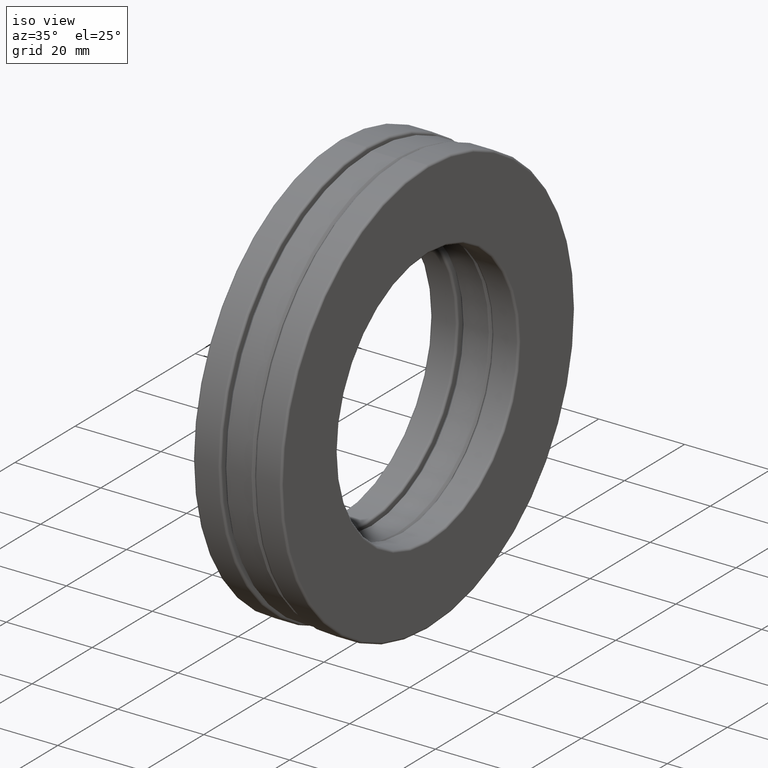
[diagram: clean part render]
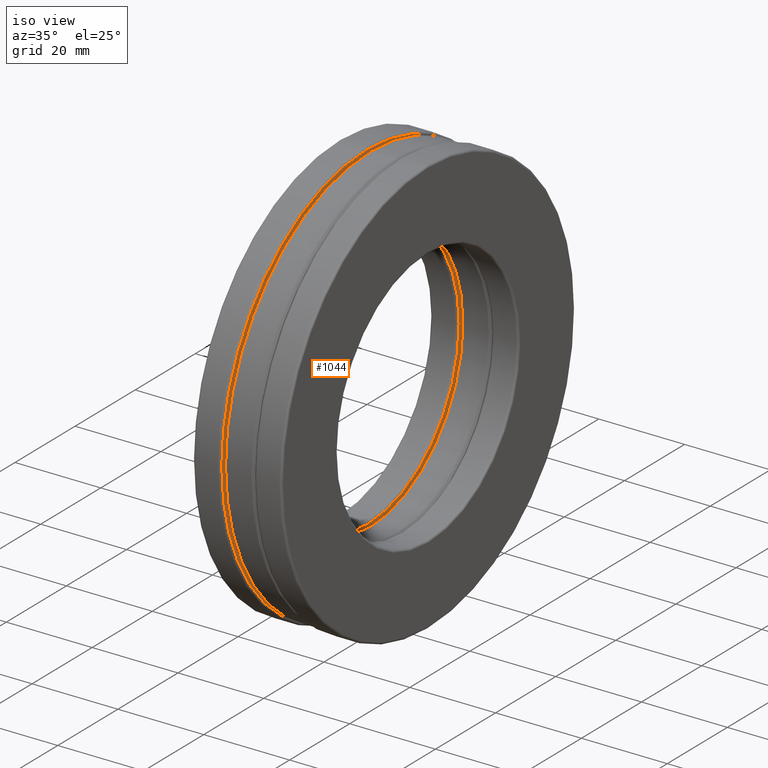
[diagram: same view with one face highlighted and labeled with its STEP entity id]
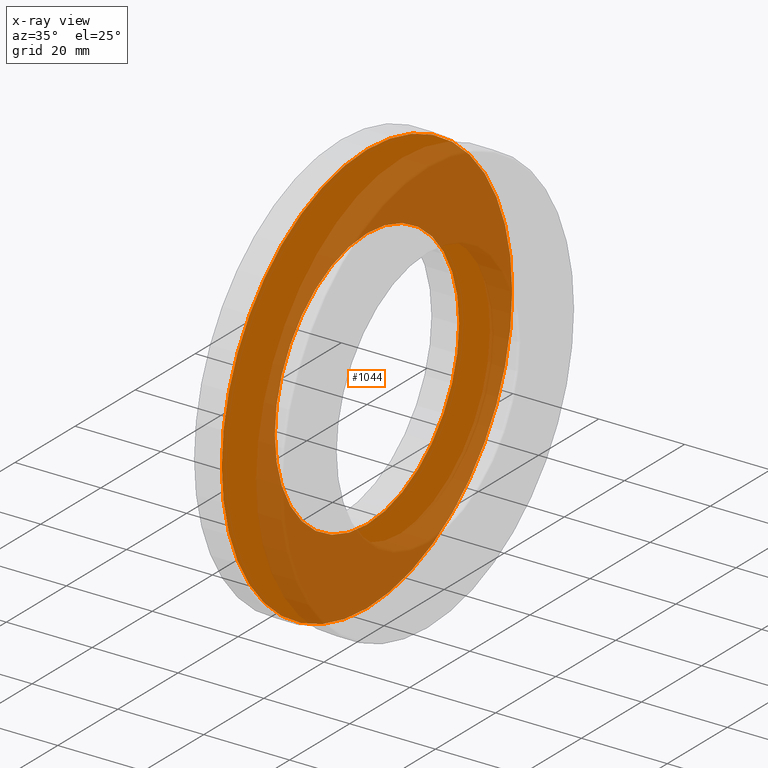
[diagram: x-ray of the same camera — body ghosted, the highlighted face saturated]
A machine part, iso view. The second image highlights one B-rep face of the part: STEP entity #1044.
The next image is the same camera in x-ray: the body ghosted, the highlighted face saturated — about 56% of this face is hidden behind the body in this view.
In plain terms, the highlighted planar face has unit normal (1, 0, 0).
Its self-contained STEP definition (entity closure, byte-faithful):
#49 = EDGE_LOOP ( 'NONE', ( #1237 ) ) ;
#53 = DIRECTION ( 'NONE',  ( 0.0000000000000000000, 0.0000000000000000000, 1.000000000000000000 ) ) ;
#54 = DIRECTION ( 'NONE',  ( 0.0000000000000000000, 0.0000000000000000000, -1.000000000000000000 ) ) ;
#101 = FACE_OUTER_BOUND ( 'NONE', #1014, .T. ) ;
#128 = AXIS2_PLACEMENT_3D ( 'NONE', #922, #1150, #706 ) ;
#258 = VERTEX_POINT ( 'NONE', #1091 ) ;
#267 = CARTESIAN_POINT ( 'NONE',  ( -0.1559999999999999200, -7.671796345843822200E-018, 0.0000000000000000000 ) ) ;
#420 = FACE_BOUND ( 'NONE', #49, .T. ) ;
#503 = CARTESIAN_POINT ( 'NONE',  ( -0.1559999999999999400, 0.0000000000000000000, 0.0000000000000000000 ) ) ;
#530 = AXIS2_PLACEMENT_3D ( 'NONE', #503, #751, #53 ) ;
#706 = DIRECTION ( 'NONE',  ( 0.0000000000000000000, 0.0000000000000000000, 1.000000000000000000 ) ) ;
#751 = DIRECTION ( 'NONE',  ( -1.000000000000000000, -0.0000000000000000000, -0.0000000000000000000 ) ) ;
#813 = EDGE_CURVE ( 'NONE', #1131, #1131, #842, .T. ) ;
#842 = CIRCLE ( 'NONE', #128, 1.207500000000000000 ) ;
#922 = CARTESIAN_POINT ( 'NONE',  ( -0.1559999999999999200, 0.0000000000000000000, 0.0000000000000000000 ) ) ;
#947 = CIRCLE ( 'NONE', #530, 1.901875000000000600 ) ;
#977 = PLANE ( 'NONE',  #1169 ) ;
#1014 = EDGE_LOOP ( 'NONE', ( #1230 ) ) ;
#1044 = ADVANCED_FACE ( 'NONE', ( #420, #101 ), #977, .T. ) ;
#1091 = CARTESIAN_POINT ( 'NONE',  ( -0.1559999999999999400, 0.0000000000000000000, 1.901875000000000600 ) ) ;
#1131 = VERTEX_POINT ( 'NONE', #1426 ) ;
#1150 = DIRECTION ( 'NONE',  ( -1.000000000000000000, -0.0000000000000000000, -0.0000000000000000000 ) ) ;
#1169 = AXIS2_PLACEMENT_3D ( 'NONE', #267, #1284, #54 ) ;
#1230 = ORIENTED_EDGE ( 'NONE', *, *, #1424, .F. ) ;
#1237 = ORIENTED_EDGE ( 'NONE', *, *, #813, .T. ) ;
#1284 = DIRECTION ( 'NONE',  ( 1.000000000000000000, 0.0000000000000000000, 0.0000000000000000000 ) ) ;
#1424 = EDGE_CURVE ( 'NONE', #258, #258, #947, .T. ) ;
#1426 = CARTESIAN_POINT ( 'NONE',  ( -0.1559999999999999200, 0.0000000000000000000, 1.207500000000000000 ) ) ;